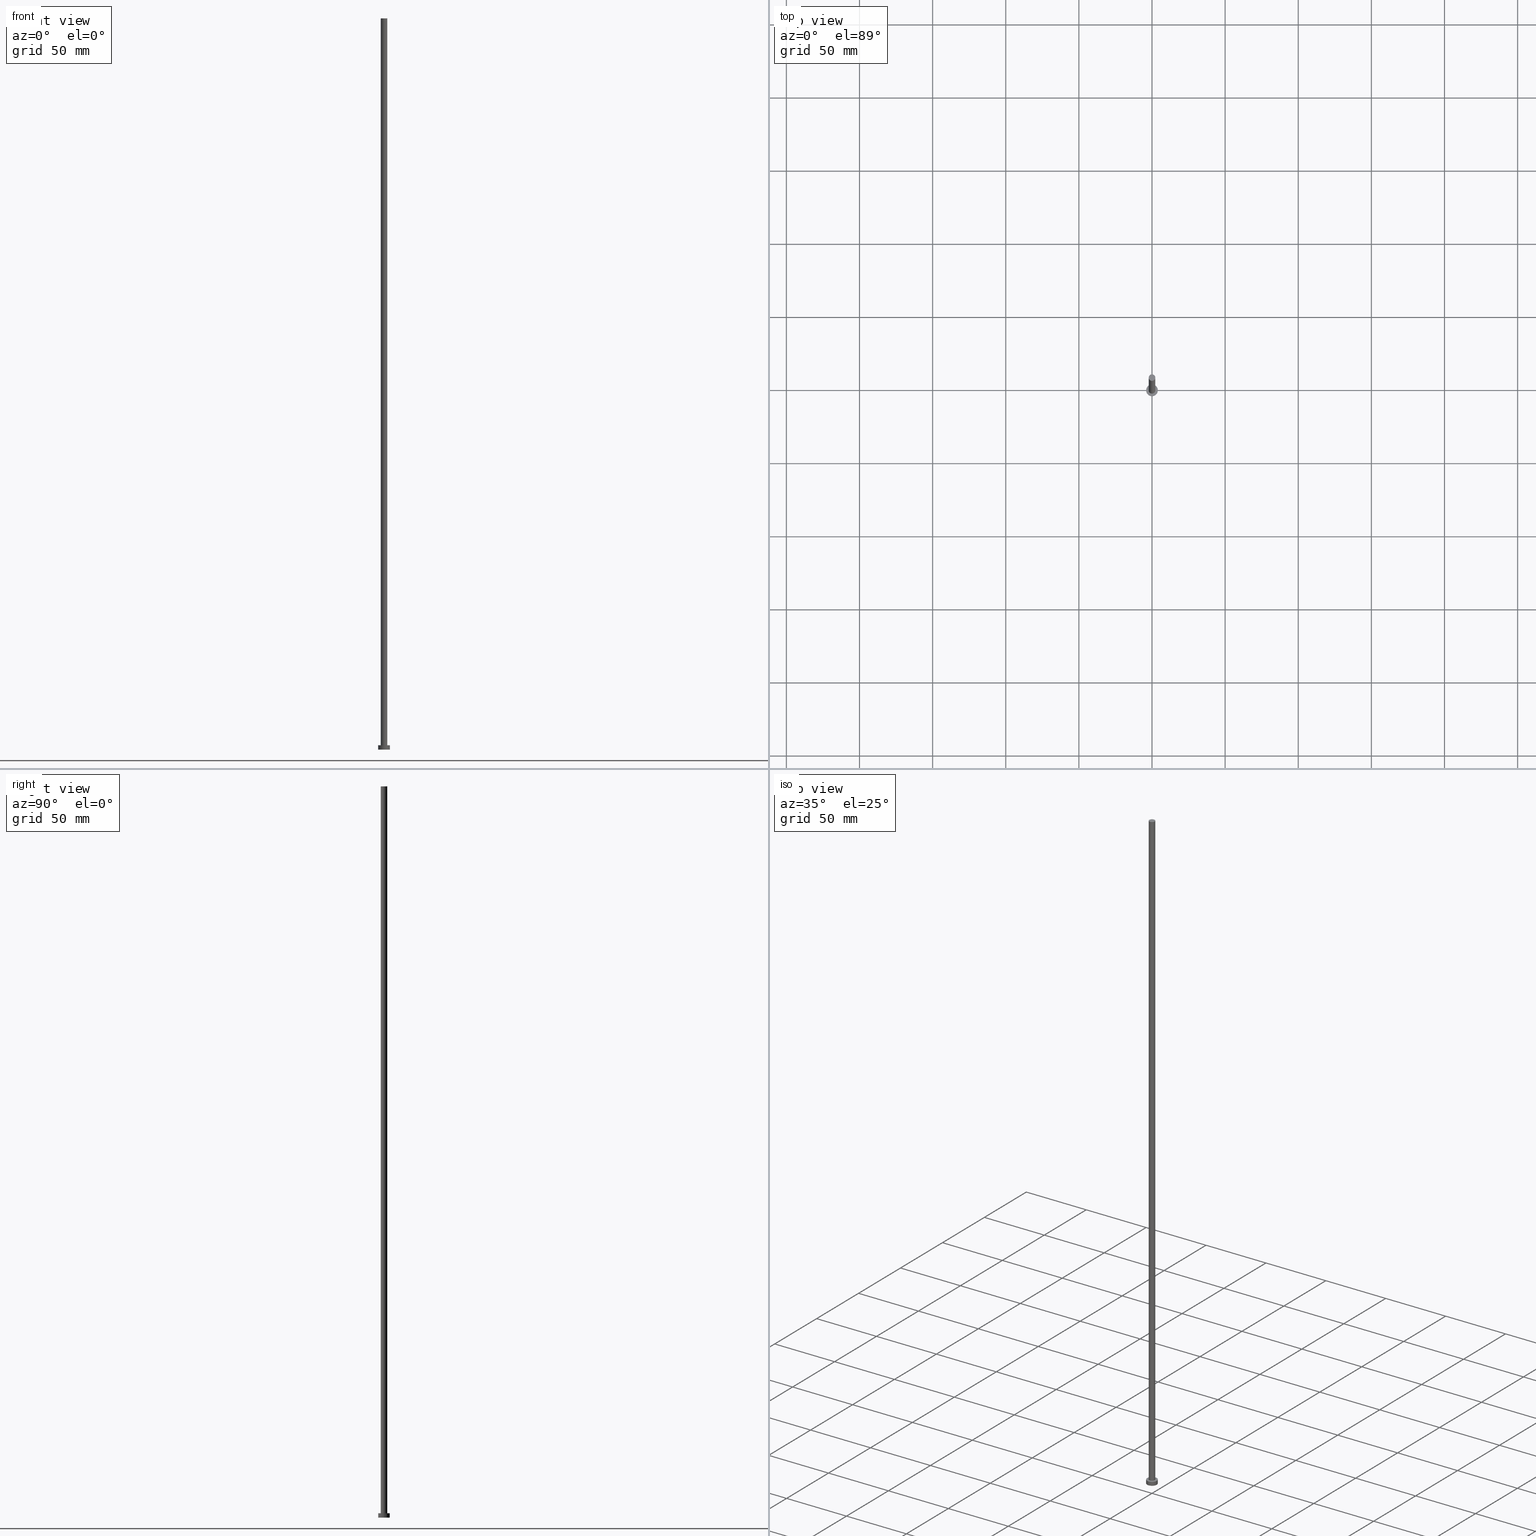
[diagram: canonical four-view strip — front | top / right | iso, engineering-drawing reading convention]
A machine part, canonical four-view strip (front | top / right | iso — engineering-drawing reading convention). The complete STEP part file that produces these views, byte-faithful:
ISO-10303-21;
HEADER;
FILE_DESCRIPTION (( 'STEP AP203' ),
    '1' );
FILE_NAME ('c33e.STEP',
    '2026-02-06T12:41:46',
    ( '' ),
    ( '' ),
    'SwSTEP 2.0',
    'SolidWorks 2019',
    '' );
FILE_SCHEMA (( 'CONFIG_CONTROL_DESIGN' ));
ENDSEC;

DATA;
#1 = VERTEX_POINT ( 'NONE', #93 ) ;
#2 = ORIENTED_EDGE ( 'NONE', *, *, #187, .T. ) ;
#3 = CALENDAR_DATE ( 2026, 6, 2 ) ;
#4 = EDGE_CURVE ( 'NONE', #61, #1, #252, .T. ) ;
#5 = DIRECTION ( 'NONE',  ( 1.000000000000000000, 0.000000000000000000, 0.000000000000000000 ) ) ;
#6 = CIRCLE ( 'NONE', #91, 2.250000000000000000 ) ;
#7 = APPLICATION_CONTEXT ( 'configuration controlled 3d designs of mechanical parts and assemblies' ) ;
#8 = DIRECTION ( 'NONE',  ( 0.000000000000000000, 0.000000000000000000, 1.000000000000000000 ) ) ;
#9 = DIRECTION ( 'NONE',  ( 1.000000000000000000, 0.000000000000000000, 0.000000000000000000 ) ) ;
#10 = LINE ( 'NONE', #245, #210 ) ;
#11 = CARTESIAN_POINT ( 'NONE',  ( -4.000000000000000000, 0.000000000000000000, 0.000000000000000000 ) ) ;
#12 = CIRCLE ( 'NONE', #72, 4.000000000000000000 ) ;
#13 = APPROVAL_ROLE ( '' ) ;
#14 = DIRECTION ( 'NONE',  ( 1.000000000000000000, 0.000000000000000000, 0.000000000000000000 ) ) ;
#15 = CC_DESIGN_DATE_AND_TIME_ASSIGNMENT ( #236, #202, ( #76 ) ) ;
#16 = AXIS2_PLACEMENT_3D ( 'NONE', #64, #224, #51 ) ;
#17 = ORIENTED_EDGE ( 'NONE', *, *, #246, .F. ) ;
#18 = ORIENTED_EDGE ( 'NONE', *, *, #128, .F. ) ;
#19 = APPROVAL_DATE_TIME ( #195, #184 ) ;
#20 = ORIENTED_EDGE ( 'NONE', *, *, #187, .F. ) ;
#21 = CC_DESIGN_SECURITY_CLASSIFICATION ( #29, ( #164 ) ) ;
#22 = PERSON_AND_ORGANIZATION ( #65, #150 ) ;
#23 = ORIENTED_EDGE ( 'NONE', *, *, #148, .T. ) ;
#24 = VERTEX_POINT ( 'NONE', #234 ) ;
#25 = DIRECTION ( 'NONE',  ( -1.000000000000000000, 0.000000000000000000, 0.000000000000000000 ) ) ;
#26 = APPROVAL_PERSON_ORGANIZATION ( #22, #184, #177 ) ;
#27 = CARTESIAN_POINT ( 'NONE',  ( 0.000000000000000000, 0.000000000000000000, 0.000000000000000000 ) ) ;
#28 = DIRECTION ( 'NONE',  ( 1.000000000000000000, 0.000000000000000000, -0.000000000000000000 ) ) ;
#29 = SECURITY_CLASSIFICATION ( '', '', #199 ) ;
#30 = PLANE ( 'NONE',  #86 ) ;
#31 = CARTESIAN_POINT ( 'NONE',  ( 0.000000000000000000, 0.000000000000000000, 3.000000000000000000 ) ) ;
#32 = DIRECTION ( 'NONE',  ( 1.000000000000000000, 0.000000000000000000, -0.000000000000000000 ) ) ;
#33 = CLOSED_SHELL ( 'NONE', ( #52, #36, #60, #196, #129, #103, #34 ) ) ;
#34 = ADVANCED_FACE ( 'NONE', ( #253 ), #84, .T. ) ;
#35 = DIRECTION ( 'NONE',  ( 0.000000000000000000, 0.000000000000000000, 1.000000000000000000 ) ) ;
#36 = ADVANCED_FACE ( 'NONE', ( #62 ), #242, .T. ) ;
#37 = ORIENTED_EDGE ( 'NONE', *, *, #148, .F. ) ;
#38 = COORDINATED_UNIVERSAL_TIME_OFFSET ( 1, 0, .AHEAD. ) ;
#39 = ORIENTED_EDGE ( 'NONE', *, *, #4, .F. ) ;
#40 = APPROVAL_STATUS ( 'not_yet_approved' ) ;
#41 = APPROVAL ( #43, 'NEUR�EN�' ) ;
#42 = LOCAL_TIME ( 13, 41, 46.00000000000000000, #63 ) ;
#43 = APPROVAL_STATUS ( 'not_yet_approved' ) ;
#44 = ORIENTED_EDGE ( 'NONE', *, *, #223, .F. ) ;
#45 = DATE_AND_TIME ( #220, #92 ) ;
#46 = ORIENTED_EDGE ( 'NONE', *, *, #4, .T. ) ;
#47 = LOCAL_TIME ( 13, 41, 46.00000000000000000, #38 ) ;
#48 = DATE_AND_TIME ( #139, #68 ) ;
#49 = FACE_OUTER_BOUND ( 'NONE', #151, .T. ) ;
#50 = CYLINDRICAL_SURFACE ( 'NONE', #191, 4.000000000000000000 ) ;
#51 = DIRECTION ( 'NONE',  ( 1.000000000000000000, 0.000000000000000000, 0.000000000000000000 ) ) ;
#52 = ADVANCED_FACE ( 'NONE', ( #87 ), #141, .T. ) ;
#53 = DIRECTION ( 'NONE',  ( 0.000000000000000000, 0.000000000000000000, 1.000000000000000000 ) ) ;
#54 = EDGE_CURVE ( 'NONE', #1, #116, #12, .T. ) ;
#55 = DESIGN_CONTEXT ( 'detailed design', #7, 'design' ) ;
#56 = DIRECTION ( 'NONE',  ( 0.000000000000000000, 0.000000000000000000, 1.000000000000000000 ) ) ;
#57 = CC_DESIGN_APPROVAL ( #184, ( #164 ) ) ;
#58 = ORIENTED_EDGE ( 'NONE', *, *, #89, .F. ) ;
#59 = COORDINATED_UNIVERSAL_TIME_OFFSET ( 1, 0, .AHEAD. ) ;
#60 = ADVANCED_FACE ( 'NONE', ( #247 ), #50, .T. ) ;
#61 = VERTEX_POINT ( 'NONE', #225 ) ;
#62 = FACE_OUTER_BOUND ( 'NONE', #138, .T. ) ;
#63 = COORDINATED_UNIVERSAL_TIME_OFFSET ( 1, 0, .AHEAD. ) ;
#64 = CARTESIAN_POINT ( 'NONE',  ( 0.000000000000000000, 0.000000000000000000, 3.000000000000000000 ) ) ;
#65 = PERSON ( 'NEUR�EN�', 'NEUR�EN�', 'NEUR�EN�', ('NEUR�EN�'), ('NEUR�EN�'), ('NEUR�EN�') ) ;
#66 =( NAMED_UNIT ( * ) SI_UNIT ( $, .STERADIAN. ) SOLID_ANGLE_UNIT ( ) );
#67 = CARTESIAN_POINT ( 'NONE',  ( 0.000000000000000000, 0.000000000000000000, 3.000000000000000000 ) ) ;
#68 = LOCAL_TIME ( 13, 41, 46.00000000000000000, #97 ) ;
#69 = CARTESIAN_POINT ( 'NONE',  ( 0.000000000000000000, 0.000000000000000000, 3.000000000000000000 ) ) ;
#70 = CARTESIAN_POINT ( 'NONE',  ( -2.250000000000000000, 0.000000000000000000, 500.0000000000000000 ) ) ;
#71 = CARTESIAN_POINT ( 'NONE',  ( 2.250000000000000000, 2.755455298081543792E-16, 3.000000000000000000 ) ) ;
#72 = AXIS2_PLACEMENT_3D ( 'NONE', #27, #8, #9 ) ;
#73 = CARTESIAN_POINT ( 'NONE',  ( 4.000000000000000000, 4.898587196589412829E-16, 3.000000000000000000 ) ) ;
#74 = PERSON_AND_ORGANIZATION ( #65, #150 ) ;
#75 = APPROVAL_PERSON_ORGANIZATION ( #217, #41, #137 ) ;
#76 = PRODUCT_DEFINITION ( 'NEZN�M�', '', #164, #55 ) ;
#77 = ORIENTED_EDGE ( 'NONE', *, *, #89, .T. ) ;
#78 = DATE_AND_TIME ( #94, #222 ) ;
#79 = SHAPE_DEFINITION_REPRESENTATION ( #171, #130 ) ;
#80 = EDGE_CURVE ( 'NONE', #116, #1, #142, .T. ) ;
#81 = ORIENTED_EDGE ( 'NONE', *, *, #227, .T. ) ;
#82 = CIRCLE ( 'NONE', #16, 2.250000000000000000 ) ;
#83 = APPROVAL_DATE_TIME ( #45, #41 ) ;
#84 = PLANE ( 'NONE',  #182 ) ;
#85 = CARTESIAN_POINT ( 'NONE',  ( 0.000000000000000000, 0.000000000000000000, 500.0000000000000000 ) ) ;
#86 = AXIS2_PLACEMENT_3D ( 'NONE', #143, #35, #32 ) ;
#87 = FACE_OUTER_BOUND ( 'NONE', #255, .T. ) ;
#88 = FACE_OUTER_BOUND ( 'NONE', #203, .T. ) ;
#89 = EDGE_CURVE ( 'NONE', #153, #24, #82, .T. ) ;
#90 = DIRECTION ( 'NONE',  ( 0.000000000000000000, 0.000000000000000000, 1.000000000000000000 ) ) ;
#91 = AXIS2_PLACEMENT_3D ( 'NONE', #105, #90, #250 ) ;
#92 = LOCAL_TIME ( 13, 41, 46.00000000000000000, #239 ) ;
#93 = CARTESIAN_POINT ( 'NONE',  ( 4.000000000000000000, 4.898587196589412829E-16, 0.000000000000000000 ) ) ;
#94 = CALENDAR_DATE ( 2026, 6, 2 ) ;
#95 = EDGE_LOOP ( 'NONE', ( #39, #194, #23, #214 ) ) ;
#96 = PERSON_AND_ORGANIZATION_ROLE ( 'design_supplier' ) ;
#97 = COORDINATED_UNIVERSAL_TIME_OFFSET ( 1, 0, .AHEAD. ) ;
#98 = APPROVAL_DATE_TIME ( #48, #111 ) ;
#99 = AXIS2_PLACEMENT_3D ( 'NONE', #181, #161, #5 ) ;
#100 = DIRECTION ( 'NONE',  ( -0.000000000000000000, -0.000000000000000000, -1.000000000000000000 ) ) ;
#101 = DIRECTION ( 'NONE',  ( -1.000000000000000000, 0.000000000000000000, 0.000000000000000000 ) ) ;
#102 = AXIS2_PLACEMENT_3D ( 'NONE', #121, #208, #183 ) ;
#103 = ADVANCED_FACE ( 'NONE', ( #49 ), #244, .T. ) ;
#104 = DIRECTION ( 'NONE',  ( -0.000000000000000000, -0.000000000000000000, -1.000000000000000000 ) ) ;
#105 = CARTESIAN_POINT ( 'NONE',  ( 0.000000000000000000, 0.000000000000000000, 500.0000000000000000 ) ) ;
#106 = DIRECTION ( 'NONE',  ( 1.000000000000000000, 0.000000000000000000, 0.000000000000000000 ) ) ;
#107 = CARTESIAN_POINT ( 'NONE',  ( -4.000000000000000000, 0.000000000000000000, 3.000000000000000000 ) ) ;
#108 = CIRCLE ( 'NONE', #115, 2.250000000000000000 ) ;
#109 = LINE ( 'NONE', #107, #200 ) ;
#110 = PRODUCT ( 'c33e', 'c33e', '', ( #172 ) ) ;
#111 = APPROVAL ( #175, 'NEUR�EN�' ) ;
#112 =( GEOMETRIC_REPRESENTATION_CONTEXT ( 3 ) GLOBAL_UNCERTAINTY_ASSIGNED_CONTEXT ( ( #193 ) ) GLOBAL_UNIT_ASSIGNED_CONTEXT ( ( #122, #144, #66 ) ) REPRESENTATION_CONTEXT ( 'NONE', 'WORKASPACE' ) );
#113 = ORIENTED_EDGE ( 'NONE', *, *, #235, .F. ) ;
#114 = VERTEX_POINT ( 'NONE', #204 ) ;
#115 = AXIS2_PLACEMENT_3D ( 'NONE', #230, #185, #190 ) ;
#116 = VERTEX_POINT ( 'NONE', #11 ) ;
#117 = CC_DESIGN_DATE_AND_TIME_ASSIGNMENT ( #78, #155, ( #29 ) ) ;
#118 = PERSON_AND_ORGANIZATION ( #65, #150 ) ;
#119 = VERTEX_POINT ( 'NONE', #70 ) ;
#120 = CARTESIAN_POINT ( 'NONE',  ( 0.000000000000000000, 0.000000000000000000, 3.000000000000000000 ) ) ;
#121 = CARTESIAN_POINT ( 'NONE',  ( 0.000000000000000000, 0.000000000000000000, 500.0000000000000000 ) ) ;
#122 =( LENGTH_UNIT ( ) NAMED_UNIT ( * ) SI_UNIT ( .MILLI., .METRE. ) );
#123 = CIRCLE ( 'NONE', #248, 4.000000000000000000 ) ;
#124 = FACE_BOUND ( 'NONE', #221, .T. ) ;
#125 = AXIS2_PLACEMENT_3D ( 'NONE', #120, #243, #25 ) ;
#126 = CC_DESIGN_PERSON_AND_ORGANIZATION_ASSIGNMENT ( #241, #206, ( #76 ) ) ;
#127 = DIRECTION ( 'NONE',  ( 1.000000000000000000, 0.000000000000000000, 0.000000000000000000 ) ) ;
#128 = EDGE_CURVE ( 'NONE', #198, #119, #134, .T. ) ;
#129 = ADVANCED_FACE ( 'NONE', ( #229 ), #30, .F. ) ;
#130 = ADVANCED_BREP_SHAPE_REPRESENTATION ( 'c33e', ( #166, #131 ), #112 ) ;
#131 = AXIS2_PLACEMENT_3D ( 'NONE', #232, #56, #127 ) ;
#132 = ORIENTED_EDGE ( 'NONE', *, *, #235, .T. ) ;
#133 = CALENDAR_DATE ( 2026, 6, 2 ) ;
#134 = CIRCLE ( 'NONE', #159, 2.250000000000000000 ) ;
#135 = CC_DESIGN_PERSON_AND_ORGANIZATION_ASSIGNMENT ( #179, #218, ( #164 ) ) ;
#136 = ORIENTED_EDGE ( 'NONE', *, *, #167, .F. ) ;
#137 = APPROVAL_ROLE ( '' ) ;
#138 = EDGE_LOOP ( 'NONE', ( #113, #46, #157, #37 ) ) ;
#139 = CALENDAR_DATE ( 2026, 6, 2 ) ;
#140 = DIRECTION ( 'NONE',  ( -0.000000000000000000, -0.000000000000000000, -1.000000000000000000 ) ) ;
#141 = CYLINDRICAL_SURFACE ( 'NONE', #213, 2.250000000000000000 ) ;
#142 = CIRCLE ( 'NONE', #99, 4.000000000000000000 ) ;
#143 = CARTESIAN_POINT ( 'NONE',  ( 0.000000000000000000, 0.000000000000000000, 0.000000000000000000 ) ) ;
#144 =( NAMED_UNIT ( * ) PLANE_ANGLE_UNIT ( ) SI_UNIT ( $, .RADIAN. ) );
#145 = CARTESIAN_POINT ( 'NONE',  ( -2.250000000000000000, 0.000000000000000000, 500.0000000000000000 ) ) ;
#146 = CC_DESIGN_PERSON_AND_ORGANIZATION_ASSIGNMENT ( #205, #152, ( #29 ) ) ;
#147 = PERSON_AND_ORGANIZATION ( #65, #150 ) ;
#148 = EDGE_CURVE ( 'NONE', #114, #116, #109, .T. ) ;
#149 = DIRECTION ( 'NONE',  ( -0.000000000000000000, -0.000000000000000000, -1.000000000000000000 ) ) ;
#150 = ORGANIZATION ( 'NEUR�EN�', 'NEUR�EN�', '' ) ;
#151 = EDGE_LOOP ( 'NONE', ( #44, #17, #240, #2 ) ) ;
#152 = PERSON_AND_ORGANIZATION_ROLE ( 'classification_officer' ) ;
#153 = VERTEX_POINT ( 'NONE', #71 ) ;
#154 = APPLICATION_CONTEXT ( 'configuration controlled 3d designs of mechanical parts and assemblies' ) ;
#155 = DATE_TIME_ROLE ( 'classification_date' ) ;
#156 = VECTOR ( 'NONE', #189, 1000.000000000000000 ) ;
#157 = ORIENTED_EDGE ( 'NONE', *, *, #54, .T. ) ;
#158 = CARTESIAN_POINT ( 'NONE',  ( 0.000000000000000000, 0.000000000000000000, 500.0000000000000000 ) ) ;
#159 = AXIS2_PLACEMENT_3D ( 'NONE', #169, #168, #106 ) ;
#160 = DIRECTION ( 'NONE',  ( -1.000000000000000000, 0.000000000000000000, 0.000000000000000000 ) ) ;
#161 = DIRECTION ( 'NONE',  ( 0.000000000000000000, 0.000000000000000000, 1.000000000000000000 ) ) ;
#162 = CC_DESIGN_PERSON_AND_ORGANIZATION_ASSIGNMENT ( #147, #233, ( #110 ) ) ;
#163 = DIRECTION ( 'NONE',  ( -0.000000000000000000, -0.000000000000000000, -1.000000000000000000 ) ) ;
#164 = PRODUCT_DEFINITION_FORMATION_WITH_SPECIFIED_SOURCE ( 'LIBOVOLN�', '', #110, .NOT_KNOWN. ) ;
#165 = LINE ( 'NONE', #145, #156 ) ;
#166 = MANIFOLD_SOLID_BREP ( 'P�idat vysunut�m3', #33 ) ;
#167 = EDGE_CURVE ( 'NONE', #119, #24, #165, .T. ) ;
#168 = DIRECTION ( 'NONE',  ( 0.000000000000000000, 0.000000000000000000, 1.000000000000000000 ) ) ;
#169 = CARTESIAN_POINT ( 'NONE',  ( 0.000000000000000000, 0.000000000000000000, 500.0000000000000000 ) ) ;
#170 = DIRECTION ( 'NONE',  ( 0.000000000000000000, 0.000000000000000000, 1.000000000000000000 ) ) ;
#171 = PRODUCT_DEFINITION_SHAPE ( 'NONE', 'NONE',  #76 ) ;
#172 = MECHANICAL_CONTEXT ( 'NONE', #154, 'mechanical' ) ;
#173 = ORIENTED_EDGE ( 'NONE', *, *, #223, .T. ) ;
#174 = CC_DESIGN_APPROVAL ( #41, ( #29 ) ) ;
#175 = APPROVAL_STATUS ( 'not_yet_approved' ) ;
#176 = ORIENTED_EDGE ( 'NONE', *, *, #128, .T. ) ;
#177 = APPROVAL_ROLE ( '' ) ;
#178 = EDGE_LOOP ( 'NONE', ( #201, #176 ) ) ;
#179 = PERSON_AND_ORGANIZATION ( #65, #150 ) ;
#180 = APPROVAL_PERSON_ORGANIZATION ( #74, #111, #13 ) ;
#181 = CARTESIAN_POINT ( 'NONE',  ( 0.000000000000000000, 0.000000000000000000, 0.000000000000000000 ) ) ;
#182 = AXIS2_PLACEMENT_3D ( 'NONE', #158, #207, #28 ) ;
#183 = DIRECTION ( 'NONE',  ( -1.000000000000000000, 0.000000000000000000, 0.000000000000000000 ) ) ;
#184 = APPROVAL ( #40, 'NEUR�EN�' ) ;
#185 = DIRECTION ( 'NONE',  ( 0.000000000000000000, 0.000000000000000000, 1.000000000000000000 ) ) ;
#186 = DIRECTION ( 'NONE',  ( 0.000000000000000000, 0.000000000000000000, 1.000000000000000000 ) ) ;
#187 = EDGE_CURVE ( 'NONE', #24, #153, #108, .T. ) ;
#188 = AXIS2_PLACEMENT_3D ( 'NONE', #212, #170, #211 ) ;
#189 = DIRECTION ( 'NONE',  ( -0.000000000000000000, -0.000000000000000000, -1.000000000000000000 ) ) ;
#190 = DIRECTION ( 'NONE',  ( 1.000000000000000000, 0.000000000000000000, 0.000000000000000000 ) ) ;
#191 = AXIS2_PLACEMENT_3D ( 'NONE', #67, #100, #160 ) ;
#192 = APPLICATION_PROTOCOL_DEFINITION ( 'international standard', 'config_control_design', 1994, #154 ) ;
#193 = UNCERTAINTY_MEASURE_WITH_UNIT (LENGTH_MEASURE( 1.000000000000000082E-05 ), #122, 'distance_accuracy_value', 'NONE');
#194 = ORIENTED_EDGE ( 'NONE', *, *, #227, .F. ) ;
#195 = DATE_AND_TIME ( #3, #47 ) ;
#196 = ADVANCED_FACE ( 'NONE', ( #124, #88 ), #209, .T. ) ;
#197 = CC_DESIGN_PERSON_AND_ORGANIZATION_ASSIGNMENT ( #118, #96, ( #164 ) ) ;
#198 = VERTEX_POINT ( 'NONE', #228 ) ;
#199 = SECURITY_CLASSIFICATION_LEVEL ( 'unclassified' ) ;
#200 = VECTOR ( 'NONE', #104, 1000.000000000000000 ) ;
#201 = ORIENTED_EDGE ( 'NONE', *, *, #246, .T. ) ;
#202 = DATE_TIME_ROLE ( 'creation_date' ) ;
#203 = EDGE_LOOP ( 'NONE', ( #81, #132 ) ) ;
#204 = CARTESIAN_POINT ( 'NONE',  ( -4.000000000000000000, 0.000000000000000000, 3.000000000000000000 ) ) ;
#205 = PERSON_AND_ORGANIZATION ( #65, #150 ) ;
#206 = PERSON_AND_ORGANIZATION_ROLE ( 'creator' ) ;
#207 = DIRECTION ( 'NONE',  ( 0.000000000000000000, 0.000000000000000000, 1.000000000000000000 ) ) ;
#208 = DIRECTION ( 'NONE',  ( -0.000000000000000000, -0.000000000000000000, -1.000000000000000000 ) ) ;
#209 = PLANE ( 'NONE',  #188 ) ;
#210 = VECTOR ( 'NONE', #163, 1000.000000000000000 ) ;
#211 = DIRECTION ( 'NONE',  ( 1.000000000000000000, 0.000000000000000000, -0.000000000000000000 ) ) ;
#212 = CARTESIAN_POINT ( 'NONE',  ( 0.000000000000000000, 0.000000000000000000, 3.000000000000000000 ) ) ;
#213 = AXIS2_PLACEMENT_3D ( 'NONE', #85, #140, #101 ) ;
#214 = ORIENTED_EDGE ( 'NONE', *, *, #80, .T. ) ;
#215 = APPLICATION_PROTOCOL_DEFINITION ( 'international standard', 'config_control_design', 1994, #7 ) ;
#216 = EDGE_LOOP ( 'NONE', ( #238, #237 ) ) ;
#217 = PERSON_AND_ORGANIZATION ( #65, #150 ) ;
#218 = PERSON_AND_ORGANIZATION_ROLE ( 'creator' ) ;
#219 = VECTOR ( 'NONE', #149, 1000.000000000000000 ) ;
#220 = CALENDAR_DATE ( 2026, 6, 2 ) ;
#221 = EDGE_LOOP ( 'NONE', ( #20, #58 ) ) ;
#222 = LOCAL_TIME ( 13, 41, 46.00000000000000000, #59 ) ;
#223 = EDGE_CURVE ( 'NONE', #198, #153, #10, .T. ) ;
#224 = DIRECTION ( 'NONE',  ( 0.000000000000000000, 0.000000000000000000, 1.000000000000000000 ) ) ;
#225 = CARTESIAN_POINT ( 'NONE',  ( 4.000000000000000000, 4.898587196589412829E-16, 3.000000000000000000 ) ) ;
#226 = AXIS2_PLACEMENT_3D ( 'NONE', #31, #186, #249 ) ;
#227 = EDGE_CURVE ( 'NONE', #114, #61, #231, .T. ) ;
#228 = CARTESIAN_POINT ( 'NONE',  ( 2.250000000000000000, 2.755455298081543792E-16, 500.0000000000000000 ) ) ;
#229 = FACE_OUTER_BOUND ( 'NONE', #216, .T. ) ;
#230 = CARTESIAN_POINT ( 'NONE',  ( 0.000000000000000000, 0.000000000000000000, 3.000000000000000000 ) ) ;
#231 = CIRCLE ( 'NONE', #226, 4.000000000000000000 ) ;
#232 = CARTESIAN_POINT ( 'NONE',  ( 0.000000000000000000, 0.000000000000000000, 0.000000000000000000 ) ) ;
#233 = PERSON_AND_ORGANIZATION_ROLE ( 'design_owner' ) ;
#234 = CARTESIAN_POINT ( 'NONE',  ( -2.250000000000000000, 0.000000000000000000, 3.000000000000000000 ) ) ;
#235 = EDGE_CURVE ( 'NONE', #61, #114, #123, .T. ) ;
#236 = DATE_AND_TIME ( #133, #42 ) ;
#237 = ORIENTED_EDGE ( 'NONE', *, *, #54, .F. ) ;
#238 = ORIENTED_EDGE ( 'NONE', *, *, #80, .F. ) ;
#239 = COORDINATED_UNIVERSAL_TIME_OFFSET ( 1, 0, .AHEAD. ) ;
#240 = ORIENTED_EDGE ( 'NONE', *, *, #167, .T. ) ;
#241 = PERSON_AND_ORGANIZATION ( #65, #150 ) ;
#242 = CYLINDRICAL_SURFACE ( 'NONE', #125, 4.000000000000000000 ) ;
#243 = DIRECTION ( 'NONE',  ( -0.000000000000000000, -0.000000000000000000, -1.000000000000000000 ) ) ;
#244 = CYLINDRICAL_SURFACE ( 'NONE', #102, 2.250000000000000000 ) ;
#245 = CARTESIAN_POINT ( 'NONE',  ( 2.250000000000000000, 2.755455298081543792E-16, 500.0000000000000000 ) ) ;
#246 = EDGE_CURVE ( 'NONE', #119, #198, #6, .T. ) ;
#247 = FACE_OUTER_BOUND ( 'NONE', #95, .T. ) ;
#248 = AXIS2_PLACEMENT_3D ( 'NONE', #69, #53, #14 ) ;
#249 = DIRECTION ( 'NONE',  ( 1.000000000000000000, 0.000000000000000000, 0.000000000000000000 ) ) ;
#250 = DIRECTION ( 'NONE',  ( 1.000000000000000000, 0.000000000000000000, 0.000000000000000000 ) ) ;
#251 = PRODUCT_RELATED_PRODUCT_CATEGORY ( 'detail', '', ( #110 ) ) ;
#252 = LINE ( 'NONE', #73, #219 ) ;
#253 = FACE_OUTER_BOUND ( 'NONE', #178, .T. ) ;
#254 = CC_DESIGN_APPROVAL ( #111, ( #76 ) ) ;
#255 = EDGE_LOOP ( 'NONE', ( #18, #173, #77, #136 ) ) ;
ENDSEC;
END-ISO-10303-21;
